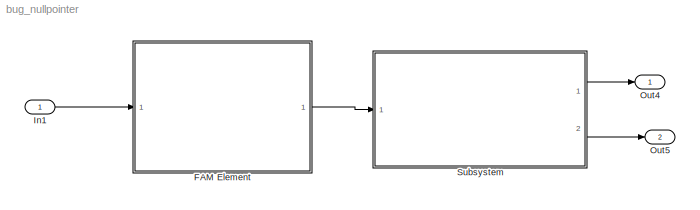
MODEL bug_nullpointer
KIND model
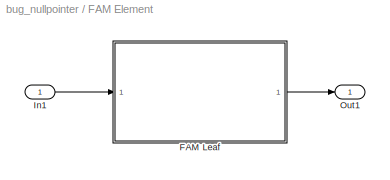
BLOCK [SubSystem] FAM Element
  FunctionWithSeparateData = off
  MaskHideContents = off
  MinAlgLoopOccurrences = off
  Opaque = off
  Ports = [1, 1]
  PropExecContextOutsideSubsystem = off
  RTWSystemCode = Auto
  RequestExecContextInheritance = off
  SID = 1
  Tag = FAM_Element
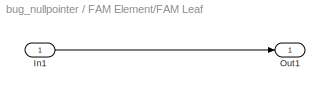
BLOCK [SubSystem] FAM Element/FAM Leaf
  FunctionWithSeparateData = off
  MaskHideContents = off
  MinAlgLoopOccurrences = on
  Opaque = off
  Ports = [1, 1]
  PropExecContextOutsideSubsystem = off
  RTWSystemCode = Auto
  RequestExecContextInheritance = off
  SID = 4
  Tag = FAM_Leaf
  TreatAsAtomicUnit = on
BLOCK [Inport] FAM Element/FAM Leaf/In1
  IconDisplay = Port number
  SID = 5
BLOCK [Outport] FAM Element/FAM Leaf/Out1
  IconDisplay = Port number
  SID = 6
BLOCK [Inport] FAM Element/In1
  IconDisplay = Port number
  SID = 2
BLOCK [Outport] FAM Element/Out1
  IconDisplay = Port number
  SID = 3
BLOCK [Inport] In1
  IconDisplay = Port number
  SID = 7
BLOCK [Outport] Out4
  IconDisplay = Port number
  SID = 11
BLOCK [Outport] Out5
  IconDisplay = Port number
  Port = 2
  SID = 19
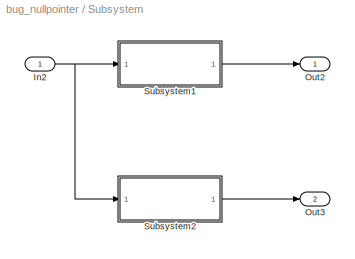
BLOCK [SubSystem] Subsystem
  FunctionWithSeparateData = off
  MaskHideContents = off
  MinAlgLoopOccurrences = off
  Opaque = off
  Ports = [1, 2]
  PropExecContextOutsideSubsystem = off
  RTWSystemCode = Auto
  RequestExecContextInheritance = off
  SID = 8
BLOCK [Inport] Subsystem/In2
  IconDisplay = Port number
  SID = 9
BLOCK [Outport] Subsystem/Out2
  IconDisplay = Port number
  SID = 10
BLOCK [Outport] Subsystem/Out3
  IconDisplay = Port number
  Port = 2
  SID = 18
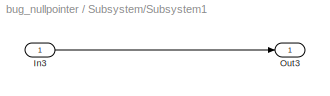
BLOCK [SubSystem] Subsystem/Subsystem1
  FunctionWithSeparateData = off
  MaskHideContents = off
  MinAlgLoopOccurrences = off
  Opaque = off
  Ports = [1, 1]
  PropExecContextOutsideSubsystem = off
  RTWSystemCode = Auto
  RequestExecContextInheritance = off
  SID = 12
BLOCK [Inport] Subsystem/Subsystem1/In3
  IconDisplay = Port number
  SID = 13
BLOCK [Outport] Subsystem/Subsystem1/Out3
  IconDisplay = Port number
  SID = 14
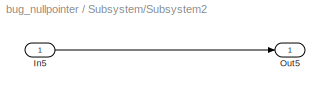
BLOCK [SubSystem] Subsystem/Subsystem2
  FunctionWithSeparateData = off
  MaskHideContents = off
  MinAlgLoopOccurrences = off
  Opaque = off
  Ports = [1, 1]
  PropExecContextOutsideSubsystem = off
  RTWSystemCode = Auto
  RequestExecContextInheritance = off
  SID = 15
BLOCK [Inport] Subsystem/Subsystem2/In5
  IconDisplay = Port number
  SID = 16
BLOCK [Outport] Subsystem/Subsystem2/Out5
  IconDisplay = Port number
  SID = 17
LINE FAM Element/FAM Leaf/In1:1 -> FAM Element/FAM Leaf/Out1:1
LINE FAM Element/FAM Leaf:1 -> FAM Element/Out1:1
LINE FAM Element/In1:1 -> FAM Element/FAM Leaf:1
LINE FAM Element:1 -> Subsystem:1
LINE In1:1 -> FAM Element:1
NET Subsystem/In2:1 -> Subsystem/Subsystem1:1, Subsystem/Subsystem2:1
LINE Subsystem/Subsystem1/In3:1 -> Subsystem/Subsystem1/Out3:1
LINE Subsystem/Subsystem1:1 -> Subsystem/Out2:1
LINE Subsystem/Subsystem2/In5:1 -> Subsystem/Subsystem2/Out5:1
LINE Subsystem/Subsystem2:1 -> Subsystem/Out3:1
LINE Subsystem:1 -> Out4:1
LINE Subsystem:2 -> Out5:1
note: NET lines group one-source signal fan-out (src -> all destinations, sorted); 1:1 wires keep LINE
